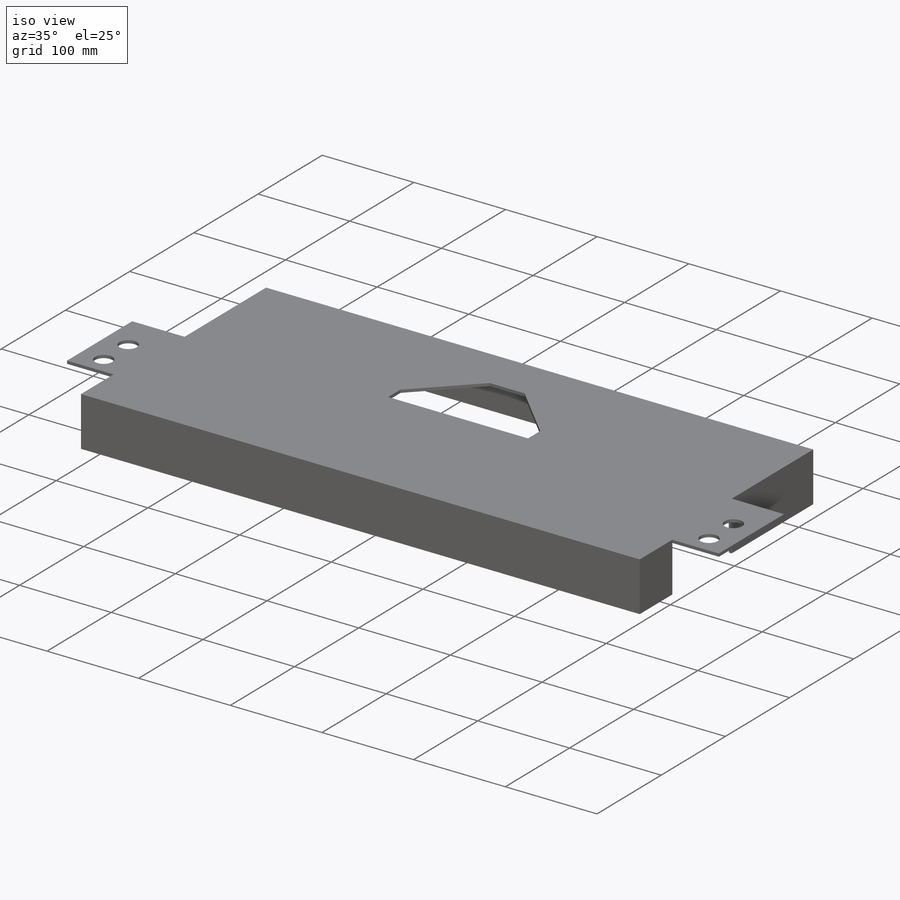
[diagram: iso view]
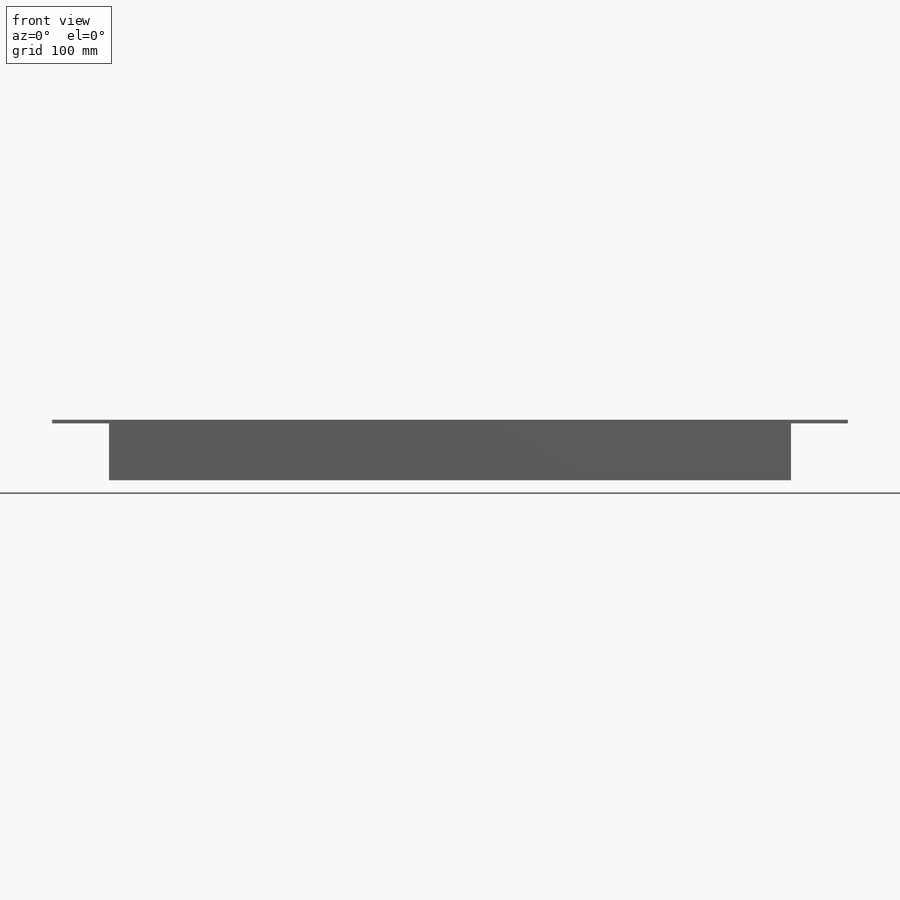
[diagram: front view]
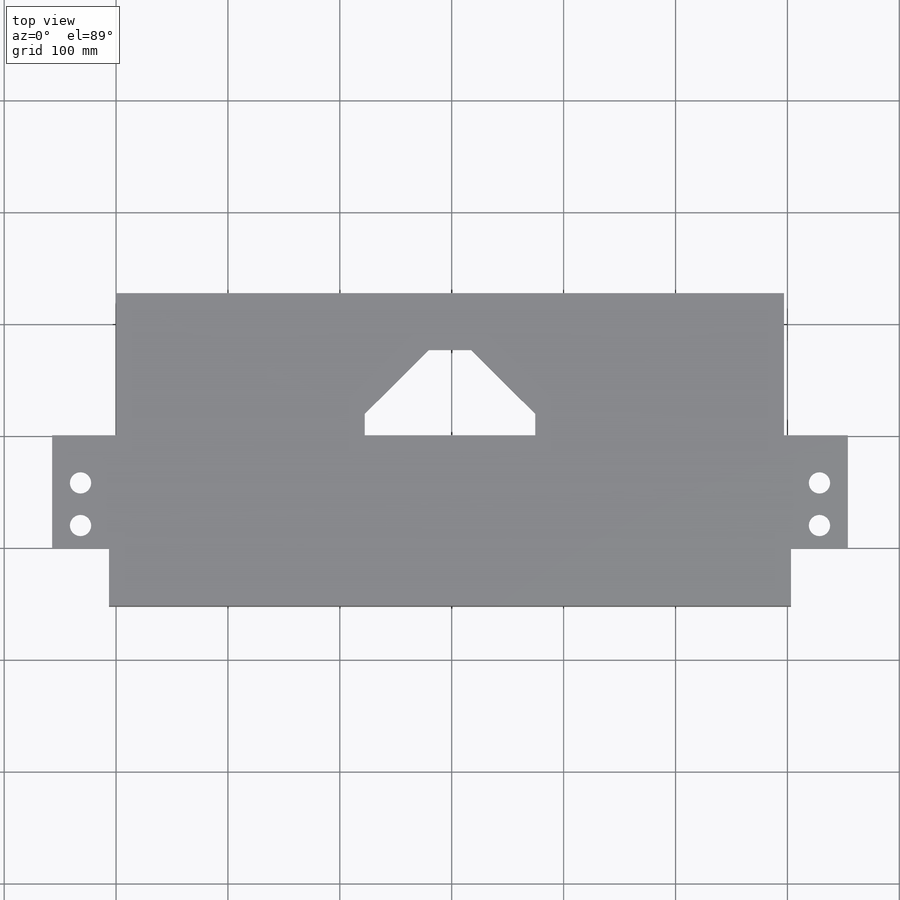
[diagram: top view]
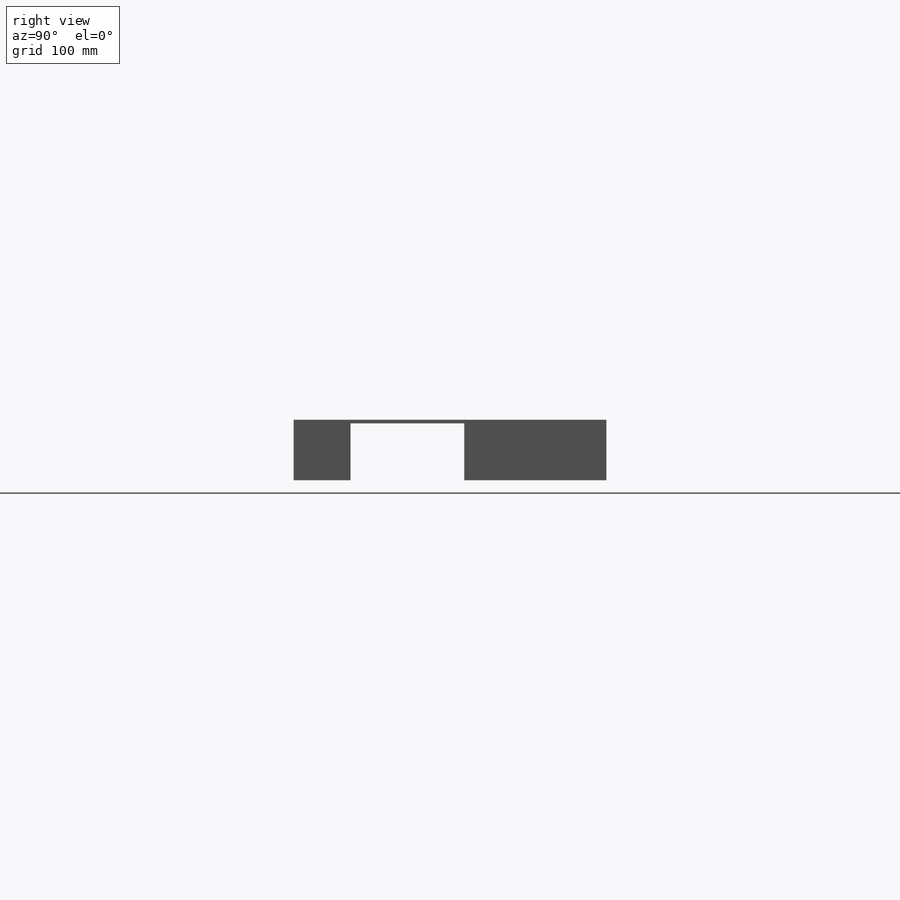
[diagram: right view]
SOLIDWORKS PART (.sldprt)
format: sldprt  version: not decoded by parser v0  size: 282,624 bytes
history: native  units: mm
features: sketch x8, extrude x7, material x1, chamfer x1, cut_extrude x1 (+11 scaffold rows collapsed)
feature tree (29):
  scaffold x11  (default folders/planes/origin — collapsed)
  material  "Material <not specified>"
  sketch  "Sketch1"  dims[c1.D3=22.225mm c1.D4=22.225mm c1.D5=22.225mm c1.D1=127.0mm c1.D2=596.9mm c2.D4=234.95mm c2.D5=31.75mm c2.D3=76.2mm c3.D4=152.4mm]
  extrude  "Boss-Extrude1"  Depth=3.175mm
  chamfer  "Chamfer1"  Distance=57.15mm Angle=45deg
  sketch  "Sketch2"  dims[D1=3.175mm]
  extrude  "Boss-Extrude2"  Depth=50.8mm
  sketch  "Sketch3"  dims[D1=3.175mm]
  extrude  "Boss-Extrude3"  Depth=50.8mm
  sketch  "Sketch4"  dims[c1.D1=3.175mm c1.D2=50.8mm c1.D3=50.8mm c2.D1=57.15mm c2.D2=57.15mm]
  extrude  "Boss-Extrude4"  Depth=101.6mm
  sketch  "Sketch5"  dims[D1=50.8mm D2=50.8mm D3=596.9mm]
  extrude  "Boss-Extrude5"  Depth=50.8mm
  sketch  "Sketch6"  dims[c1.D1=3.175mm c1.D2=3.175mm c1.D3=47.625mm c2.D3=~1.761149deg c3.D3=3.175mm c3.D4=0.0mm]
  extrude  "Boss-Extrude6"  Depth=50.8mm
  sketch  "Sketch7"  dims[D1=3.175mm]
  extrude  "Boss-Extrude7"  Depth=50.8mm
  sketch  "Sketch8"  dims[c1.D1=19.05mm c1.D2=19.05mm c1.D3=19.05mm c1.D4=19.05mm c2.D3=19.05mm c2.D2=25.4mm c3.D3=20.955mm c3.D4=80.645mm c4.D3=20.955mm c4.D4=2.0]
  cut_extrude  "Cut-Extrude1"  [1 undecoded]
decode coverage: 16 of 17 modeling features carry decoded parameters
note: ~ marks probable driven/reference dimensions
note: 1 parameter value undecoded
note: suppression state not decoded; provenance and decode notes live in map.json
